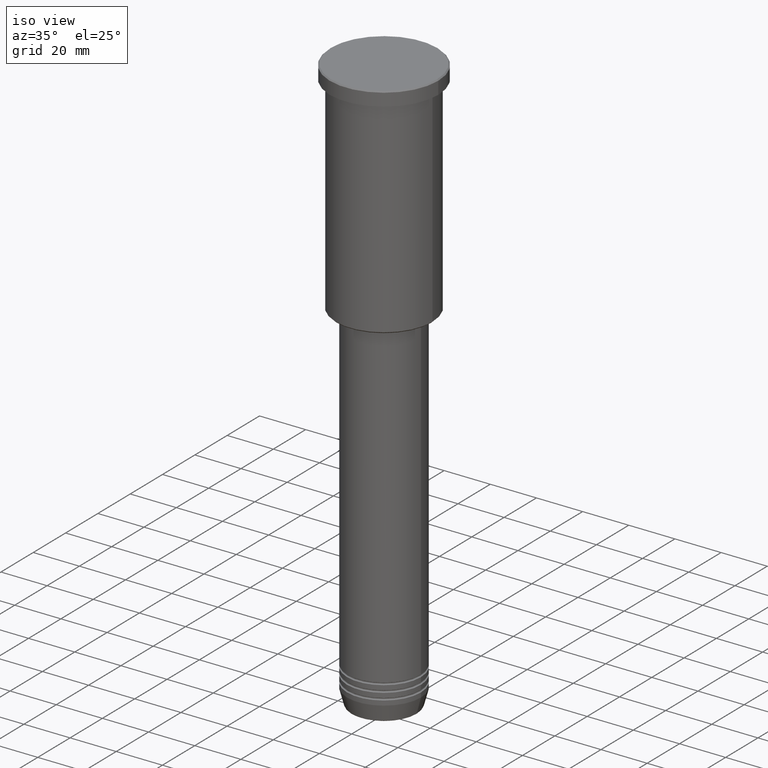
[diagram: clean part render]
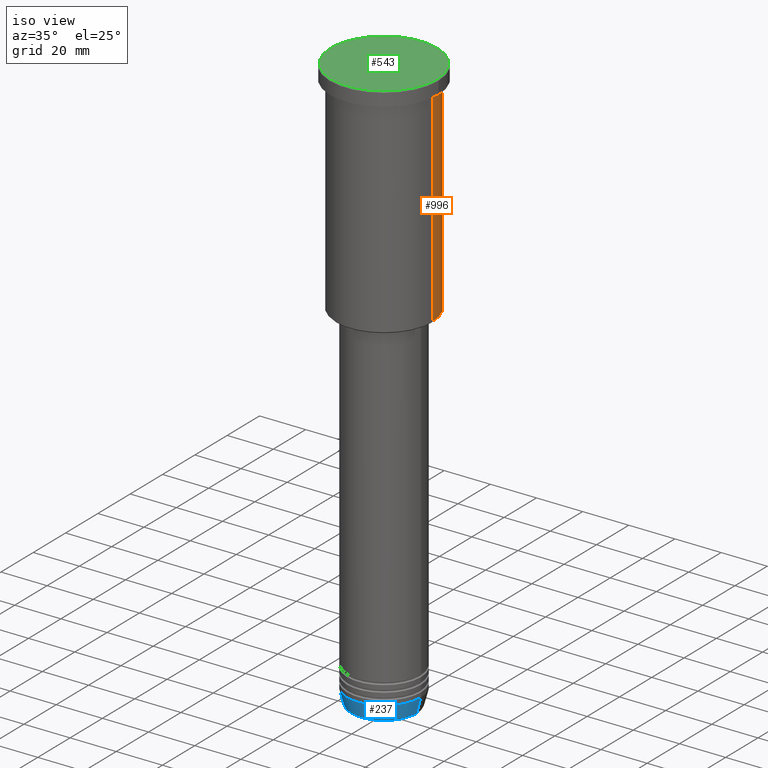
[diagram: same view with three faces highlighted in distinct colors, each labeled with its STEP entity id]
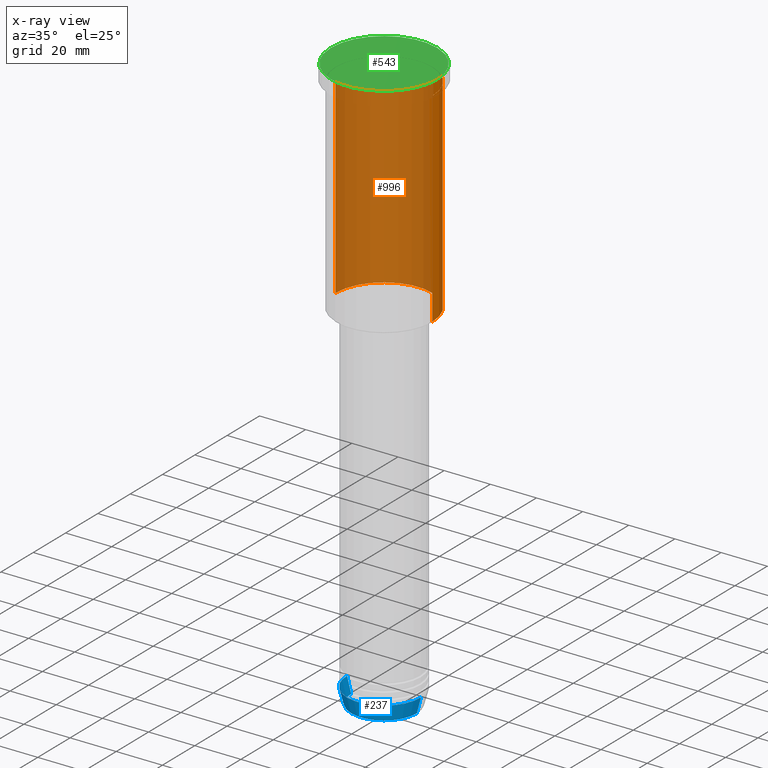
[diagram: x-ray of the same camera — body ghosted, the three highlighted faces saturated]
A machine part, iso view with three faces highlighted in distinct colors.
The next image is the same camera in x-ray (body ghosted, the three faces saturated) — at least one of them is partly hidden behind the body in this view.
Their STEP definitions:

[orange] entity #996 — the highlighted cylindrical surface (partial cylindrical patch) has radius 21 mm, axis along (-0, -0, 1).
#4 = DIRECTION ( 'NONE',  ( -0.000000000000000000, -0.000000000000000000, 1.000000000000000000 ) ) ;
#44 = VERTEX_POINT ( 'NONE', #610 ) ;
#96 = LINE ( 'NONE', #822, #1122 ) ;
#106 = DIRECTION ( 'NONE',  ( -0.000000000000000000, -0.000000000000000000, 1.000000000000000000 ) ) ;
#116 = ORIENTED_EDGE ( 'NONE', *, *, #485, .F. ) ;
#141 = DIRECTION ( 'NONE',  ( -0.000000000000000000, -0.000000000000000000, 1.000000000000000000 ) ) ;
#181 = CARTESIAN_POINT ( 'NONE',  ( -21.00000000000000000, 2.571758278209441661E-15, 0.000000000000000000 ) ) ;
#214 = CARTESIAN_POINT ( 'NONE',  ( 21.00000000000000000, 0.000000000000000000, -6.999999999999994671 ) ) ;
#215 = VERTEX_POINT ( 'NONE', #214 ) ;
#236 = CARTESIAN_POINT ( 'NONE',  ( 0.000000000000000000, 0.000000000000000000, -95.49999999999997158 ) ) ;
#262 = VECTOR ( 'NONE', #4, 1000.000000000000000 ) ;
#265 = LINE ( 'NONE', #181, #262 ) ;
#266 = DIRECTION ( 'NONE',  ( 1.000000000000000000, 0.000000000000000000, 0.000000000000000000 ) ) ;
#277 = CARTESIAN_POINT ( 'NONE',  ( -21.00000000000000000, 2.571758278209441661E-15, -95.49999999999997158 ) ) ;
#293 = CYLINDRICAL_SURFACE ( 'NONE', #377, 21.00000000000000000 ) ;
#324 = ORIENTED_EDGE ( 'NONE', *, *, #854, .T. ) ;
#332 = CIRCLE ( 'NONE', #1105, 21.00000000000000000 ) ;
#333 = CARTESIAN_POINT ( 'NONE',  ( 0.000000000000000000, 0.000000000000000000, -6.999999999999994671 ) ) ;
#377 = AXIS2_PLACEMENT_3D ( 'NONE', #838, #737, #1018 ) ;
#396 = CIRCLE ( 'NONE', #1046, 21.00000000000000000 ) ;
#408 = DIRECTION ( 'NONE',  ( -1.000000000000000000, 0.000000000000000000, 0.000000000000000000 ) ) ;
#440 = EDGE_CURVE ( 'NONE', #215, #44, #332, .T. ) ;
#485 = EDGE_CURVE ( 'NONE', #1128, #215, #96, .T. ) ;
#504 = VERTEX_POINT ( 'NONE', #277 ) ;
#597 = EDGE_LOOP ( 'NONE', ( #624, #324, #725, #116 ) ) ;
#610 = CARTESIAN_POINT ( 'NONE',  ( -21.00000000000000000, 2.571758278209441661E-15, -6.999999999999994671 ) ) ;
#624 = ORIENTED_EDGE ( 'NONE', *, *, #1127, .T. ) ;
#725 = ORIENTED_EDGE ( 'NONE', *, *, #440, .F. ) ;
#737 = DIRECTION ( 'NONE',  ( -0.000000000000000000, -0.000000000000000000, 1.000000000000000000 ) ) ;
#822 = CARTESIAN_POINT ( 'NONE',  ( 21.00000000000000000, 0.000000000000000000, 0.000000000000000000 ) ) ;
#838 = CARTESIAN_POINT ( 'NONE',  ( 0.000000000000000000, 0.000000000000000000, 0.000000000000000000 ) ) ;
#854 = EDGE_CURVE ( 'NONE', #504, #44, #265, .T. ) ;
#992 = DIRECTION ( 'NONE',  ( -0.000000000000000000, -0.000000000000000000, 1.000000000000000000 ) ) ;
#996 = ADVANCED_FACE ( 'NONE', ( #1116 ), #293, .T. ) ;
#1018 = DIRECTION ( 'NONE',  ( 1.000000000000000000, 0.000000000000000000, 0.000000000000000000 ) ) ;
#1046 = AXIS2_PLACEMENT_3D ( 'NONE', #236, #141, #408 ) ;
#1055 = CARTESIAN_POINT ( 'NONE',  ( 21.00000000000000000, 0.000000000000000000, -95.49999999999997158 ) ) ;
#1105 = AXIS2_PLACEMENT_3D ( 'NONE', #333, #992, #266 ) ;
#1116 = FACE_OUTER_BOUND ( 'NONE', #597, .T. ) ;
#1122 = VECTOR ( 'NONE', #106, 1000.000000000000000 ) ;
#1127 = EDGE_CURVE ( 'NONE', #1128, #504, #396, .T. ) ;
#1128 = VERTEX_POINT ( 'NONE', #1055 ) ;

[blue] entity #237 — the highlighted conical surface has half-angle 15 deg.
#6 = CARTESIAN_POINT ( 'NONE',  ( -14.22365507213719660, 1.850665122131323731E-15, -250.6294095225512422 ) ) ;
#27 = CARTESIAN_POINT ( 'NONE',  ( -16.00000000000000000, 1.959434878635765131E-15, -244.0000000000000284 ) ) ;
#54 = ORIENTED_EDGE ( 'NONE', *, *, #179, .T. ) ;
#86 = ORIENTED_EDGE ( 'NONE', *, *, #1087, .F. ) ;
#88 = EDGE_CURVE ( 'NONE', #160, #965, #91, .T. ) ;
#91 = CIRCLE ( 'NONE', #427, 14.22365507213719660 ) ;
#97 = DIRECTION ( 'NONE',  ( 0.2588190451025213501, 0.000000000000000000, 0.9659258262890680902 ) ) ;
#103 = LINE ( 'NONE', #915, #885 ) ;
#115 = DIRECTION ( 'NONE',  ( 1.000000000000000000, 0.000000000000000000, 0.000000000000000000 ) ) ;
#126 = VERTEX_POINT ( 'NONE', #27 ) ;
#134 = EDGE_CURVE ( 'NONE', #160, #126, #201, .T. ) ;
#160 = VERTEX_POINT ( 'NONE', #6 ) ;
#179 = EDGE_CURVE ( 'NONE', #965, #461, #103, .T. ) ;
#201 = LINE ( 'NONE', #920, #963 ) ;
#231 = EDGE_LOOP ( 'NONE', ( #673, #1026, #54, #86 ) ) ;
#232 = DIRECTION ( 'NONE',  ( -0.000000000000000000, -0.000000000000000000, 1.000000000000000000 ) ) ;
#237 = ADVANCED_FACE ( 'NONE', ( #398 ), #331, .T. ) ;
#302 = AXIS2_PLACEMENT_3D ( 'NONE', #1051, #232, #325 ) ;
#319 = DIRECTION ( 'NONE',  ( -0.000000000000000000, -0.000000000000000000, 1.000000000000000000 ) ) ;
#325 = DIRECTION ( 'NONE',  ( 1.000000000000000000, 0.000000000000000000, 0.000000000000000000 ) ) ;
#331 = CONICAL_SURFACE ( 'NONE', #391, 16.00000000000000000, 0.2617993877991500740 ) ;
#391 = AXIS2_PLACEMENT_3D ( 'NONE', #758, #319, #1049 ) ;
#398 = FACE_OUTER_BOUND ( 'NONE', #231, .T. ) ;
#427 = AXIS2_PLACEMENT_3D ( 'NONE', #1093, #830, #115 ) ;
#461 = VERTEX_POINT ( 'NONE', #978 ) ;
#464 = DIRECTION ( 'NONE',  ( -0.2588190451025213501, 3.169619151431772337E-17, 0.9659258262890680902 ) ) ;
#560 = CARTESIAN_POINT ( 'NONE',  ( 14.22365507213719660, 0.000000000000000000, -250.6294095225512422 ) ) ;
#673 = ORIENTED_EDGE ( 'NONE', *, *, #134, .F. ) ;
#758 = CARTESIAN_POINT ( 'NONE',  ( 0.000000000000000000, 0.000000000000000000, -244.0000000000000284 ) ) ;
#811 = CIRCLE ( 'NONE', #302, 16.00000000000000000 ) ;
#830 = DIRECTION ( 'NONE',  ( -0.000000000000000000, -0.000000000000000000, 1.000000000000000000 ) ) ;
#885 = VECTOR ( 'NONE', #97, 1000.000000000000000 ) ;
#915 = CARTESIAN_POINT ( 'NONE',  ( 16.00000000000000000, 0.000000000000000000, -244.0000000000000284 ) ) ;
#920 = CARTESIAN_POINT ( 'NONE',  ( -16.00000000000000000, 1.959434878635765131E-15, -244.0000000000000284 ) ) ;
#963 = VECTOR ( 'NONE', #464, 1000.000000000000000 ) ;
#965 = VERTEX_POINT ( 'NONE', #560 ) ;
#978 = CARTESIAN_POINT ( 'NONE',  ( 16.00000000000000000, 0.000000000000000000, -244.0000000000000284 ) ) ;
#1026 = ORIENTED_EDGE ( 'NONE', *, *, #88, .T. ) ;
#1049 = DIRECTION ( 'NONE',  ( 1.000000000000000000, 0.000000000000000000, 0.000000000000000000 ) ) ;
#1051 = CARTESIAN_POINT ( 'NONE',  ( 0.000000000000000000, 0.000000000000000000, -244.0000000000000284 ) ) ;
#1087 = EDGE_CURVE ( 'NONE', #126, #461, #811, .T. ) ;
#1093 = CARTESIAN_POINT ( 'NONE',  ( 0.000000000000000000, 0.000000000000000000, -250.6294095225512422 ) ) ;

[green] entity #543 — the highlighted planar face has unit normal (0, -0, 1).
#13 = CARTESIAN_POINT ( 'NONE',  ( 0.000000000000000000, 0.000000000000000000, 0.000000000000000000 ) ) ;
#25 = EDGE_CURVE ( 'NONE', #441, #632, #144, .T. ) ;
#33 = CARTESIAN_POINT ( 'NONE',  ( -23.00000000000005329, 0.000000000000000000, 0.000000000000000000 ) ) ;
#41 = ORIENTED_EDGE ( 'NONE', *, *, #382, .T. ) ;
#90 = CARTESIAN_POINT ( 'NONE',  ( 0.000000000000000000, 0.000000000000000000, 0.000000000000000000 ) ) ;
#140 = ORIENTED_EDGE ( 'NONE', *, *, #25, .T. ) ;
#144 = CIRCLE ( 'NONE', #806, 23.00000000000005329 ) ;
#286 = DIRECTION ( 'NONE',  ( 0.000000000000000000, -0.000000000000000000, 1.000000000000000000 ) ) ;
#317 = AXIS2_PLACEMENT_3D ( 'NONE', #13, #286, #555 ) ;
#373 = AXIS2_PLACEMENT_3D ( 'NONE', #987, #1057, #524 ) ;
#378 = FACE_OUTER_BOUND ( 'NONE', #906, .T. ) ;
#382 = EDGE_CURVE ( 'NONE', #632, #441, #1020, .T. ) ;
#441 = VERTEX_POINT ( 'NONE', #1071 ) ;
#524 = DIRECTION ( 'NONE',  ( 1.000000000000000000, 0.000000000000000000, 0.000000000000000000 ) ) ;
#543 = ADVANCED_FACE ( 'NONE', ( #378 ), #1107, .T. ) ;
#555 = DIRECTION ( 'NONE',  ( 1.000000000000000000, 0.000000000000000000, 0.000000000000000000 ) ) ;
#632 = VERTEX_POINT ( 'NONE', #33 ) ;
#806 = AXIS2_PLACEMENT_3D ( 'NONE', #90, #1154, #1066 ) ;
#906 = EDGE_LOOP ( 'NONE', ( #41, #140 ) ) ;
#987 = CARTESIAN_POINT ( 'NONE',  ( 0.000000000000000000, 0.000000000000000000, 0.000000000000000000 ) ) ;
#1020 = CIRCLE ( 'NONE', #373, 23.00000000000005329 ) ;
#1057 = DIRECTION ( 'NONE',  ( -0.000000000000000000, -0.000000000000000000, 1.000000000000000000 ) ) ;
#1066 = DIRECTION ( 'NONE',  ( 1.000000000000000000, 0.000000000000000000, 0.000000000000000000 ) ) ;
#1071 = CARTESIAN_POINT ( 'NONE',  ( 23.00000000000005329, 2.847303808017599689E-15, 0.000000000000000000 ) ) ;
#1107 = PLANE ( 'NONE',  #317 ) ;
#1154 = DIRECTION ( 'NONE',  ( -0.000000000000000000, -0.000000000000000000, 1.000000000000000000 ) ) ;